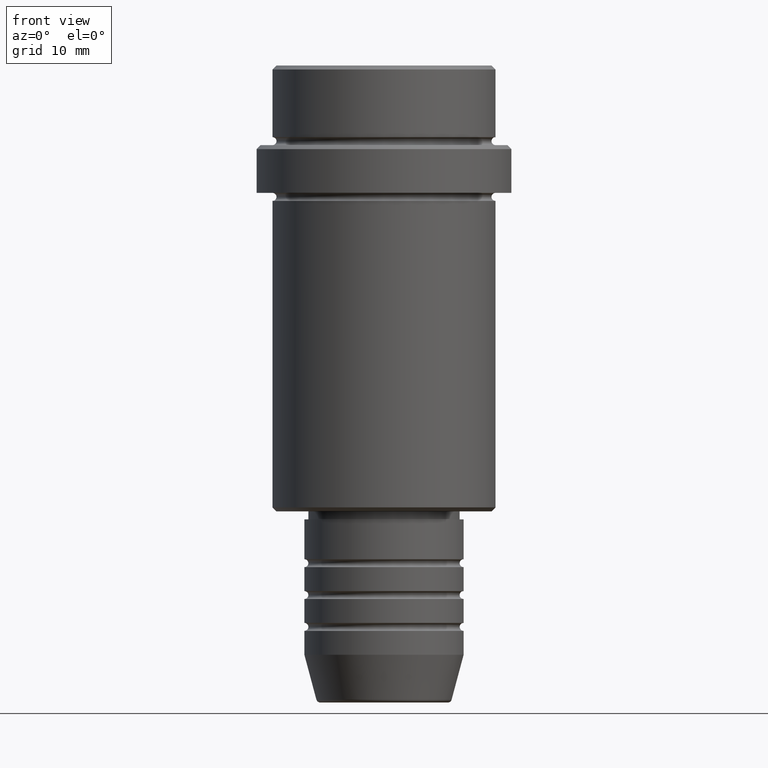
[diagram: clean part render]
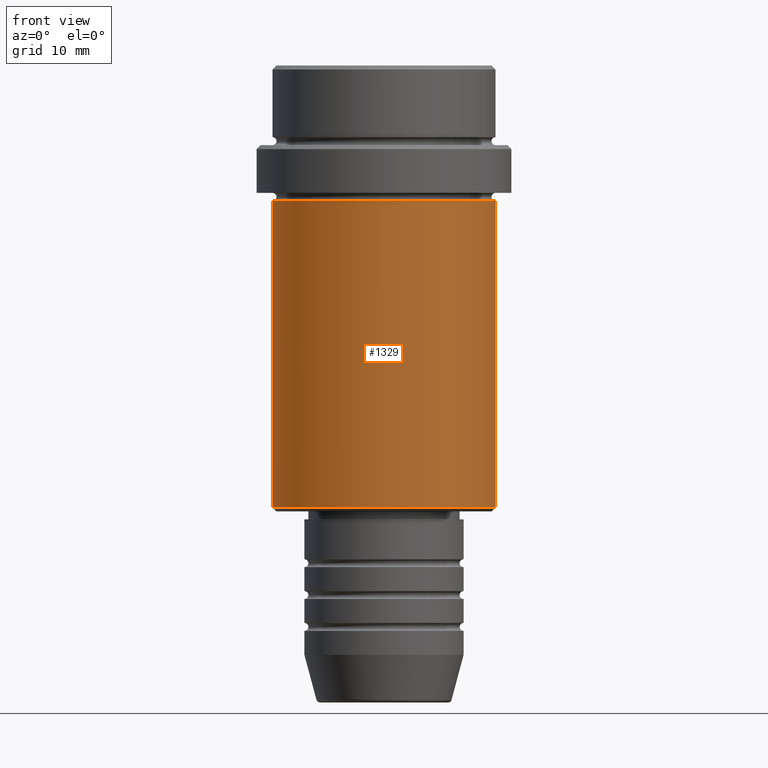
[diagram: same view with one face highlighted and labeled with its STEP entity id]
A machine part, front view. The second image highlights one B-rep face of the part: STEP entity #1329.
In plain terms, the highlighted cylindrical surface (partial cylindrical patch) has radius 14 mm, axis along (-0, -0, 1).
Its self-contained STEP definition (entity closure, byte-faithful):
#10 = VERTEX_POINT ( 'NONE', #737 ) ;
#29 = DIRECTION ( 'NONE',  ( -1.000000000000000000, 0.000000000000000000, 0.000000000000000000 ) ) ;
#42 = EDGE_CURVE ( 'NONE', #213, #1218, #81, .T. ) ;
#64 = EDGE_LOOP ( 'NONE', ( #1158, #1162, #1394, #329 ) ) ;
#78 = AXIS2_PLACEMENT_3D ( 'NONE', #933, #585, #29 ) ;
#81 = LINE ( 'NONE', #89, #916 ) ;
#89 = CARTESIAN_POINT ( 'NONE',  ( -13.99999999999999822, 1.714505518806294441E-15, 0.000000000000000000 ) ) ;
#121 = EDGE_CURVE ( 'NONE', #1218, #10, #752, .T. ) ;
#213 = VERTEX_POINT ( 'NONE', #719 ) ;
#329 = ORIENTED_EDGE ( 'NONE', *, *, #121, .F. ) ;
#409 = CYLINDRICAL_SURFACE ( 'NONE', #1024, 13.99999999999999822 ) ;
#476 = DIRECTION ( 'NONE',  ( -0.000000000000000000, -0.000000000000000000, 1.000000000000000000 ) ) ;
#523 = DIRECTION ( 'NONE',  ( -0.000000000000000000, -0.000000000000000000, 1.000000000000000000 ) ) ;
#585 = DIRECTION ( 'NONE',  ( -0.000000000000000000, -0.000000000000000000, 1.000000000000000000 ) ) ;
#608 = VECTOR ( 'NONE', #476, 1000.000000000000000 ) ;
#609 = CIRCLE ( 'NONE', #78, 13.99999999999999822 ) ;
#674 = CARTESIAN_POINT ( 'NONE',  ( -13.99999999999999467, 1.714505518806294244E-15, -17.00000000000000355 ) ) ;
#686 = AXIS2_PLACEMENT_3D ( 'NONE', #879, #1303, #787 ) ;
#690 = CARTESIAN_POINT ( 'NONE',  ( 13.99999999999999822, 0.000000000000000000, 0.000000000000000000 ) ) ;
#717 = DIRECTION ( 'NONE',  ( 1.000000000000000000, 0.000000000000000000, 0.000000000000000000 ) ) ;
#719 = CARTESIAN_POINT ( 'NONE',  ( -13.99999999999999822, 1.714505518806294441E-15, -55.50000000000000711 ) ) ;
#737 = CARTESIAN_POINT ( 'NONE',  ( 13.99999999999999467, 0.000000000000000000, -17.00000000000000355 ) ) ;
#746 = CARTESIAN_POINT ( 'NONE',  ( 0.000000000000000000, 0.000000000000000000, 0.000000000000000000 ) ) ;
#752 = CIRCLE ( 'NONE', #686, 13.99999999999999467 ) ;
#787 = DIRECTION ( 'NONE',  ( 1.000000000000000000, 0.000000000000000000, 0.000000000000000000 ) ) ;
#879 = CARTESIAN_POINT ( 'NONE',  ( 0.000000000000000000, 0.000000000000000000, -17.00000000000000355 ) ) ;
#883 = LINE ( 'NONE', #690, #608 ) ;
#912 = CARTESIAN_POINT ( 'NONE',  ( 13.99999999999999822, 0.000000000000000000, -55.50000000000000711 ) ) ;
#916 = VECTOR ( 'NONE', #523, 1000.000000000000000 ) ;
#925 = EDGE_CURVE ( 'NONE', #1129, #10, #883, .T. ) ;
#933 = CARTESIAN_POINT ( 'NONE',  ( 0.000000000000000000, 0.000000000000000000, -55.50000000000000711 ) ) ;
#967 = DIRECTION ( 'NONE',  ( -0.000000000000000000, -0.000000000000000000, 1.000000000000000000 ) ) ;
#1024 = AXIS2_PLACEMENT_3D ( 'NONE', #746, #967, #717 ) ;
#1126 = EDGE_CURVE ( 'NONE', #213, #1129, #609, .T. ) ;
#1129 = VERTEX_POINT ( 'NONE', #912 ) ;
#1158 = ORIENTED_EDGE ( 'NONE', *, *, #42, .F. ) ;
#1162 = ORIENTED_EDGE ( 'NONE', *, *, #1126, .T. ) ;
#1218 = VERTEX_POINT ( 'NONE', #674 ) ;
#1303 = DIRECTION ( 'NONE',  ( -0.000000000000000000, -0.000000000000000000, 1.000000000000000000 ) ) ;
#1329 = ADVANCED_FACE ( 'NONE', ( #1374 ), #409, .T. ) ;
#1374 = FACE_OUTER_BOUND ( 'NONE', #64, .T. ) ;
#1394 = ORIENTED_EDGE ( 'NONE', *, *, #925, .T. ) ;